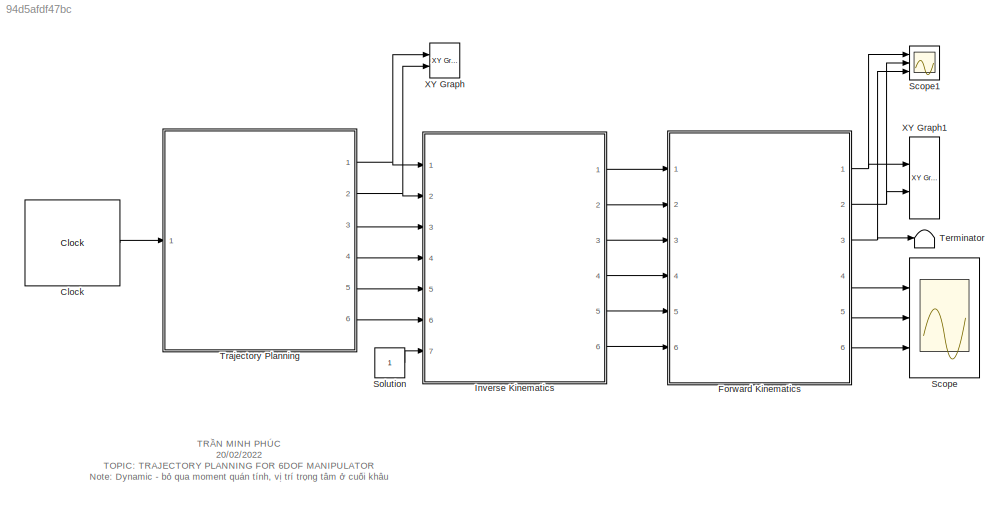
MODEL slx_94d5afdf47bc
KIND model
CONFIG AbsTol = auto
CONFIG EnableMultiTasking = off
CONFIG FixedStep = 0.01
CONFIG MaxStep = auto
CONFIG MinStep = auto
CONFIG RelTol = 1e-3
CONFIG SampleTimeConstraint = Unconstrained
CONFIG SolverName = FixedStepAuto
CONFIG StartTime = 0.0
CONFIG StopTime = 100
BLOCK [Clock] Clock
  DisplayTime = on
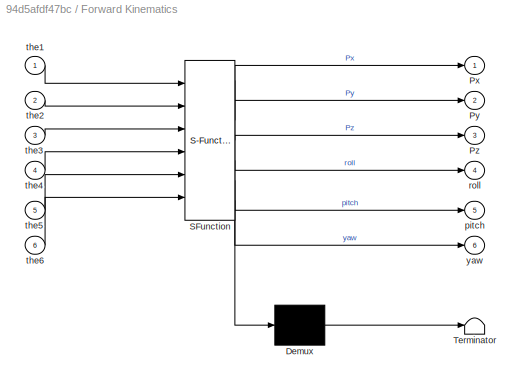
BLOCK [SubSystem] Forward Kinematics
  ErrorFcn = Stateflow.Translate.translate
  PermitHierarchicalResolution = ExplicitOnly
  Ports = [6, 6]
  RequestExecContextInheritance = off
  SFBlockType = MATLAB Function
  TreatAsAtomicUnit = on
BLOCK [Demux] Forward Kinematics/ Demux 
  Outputs = 1
  Ports = [1, 1]
BLOCK [S-Function] Forward Kinematics/ SFunction 
  EnableBusSupport = on
  FunctionName = sf_sfun
  PortCounts = [6 7]
  Ports = [6, 7]
  SFcnIsStateOwnerBlock = off
  SFunctionDeploymentMode = off
  Tag = Stateflow S-Function 3
BLOCK [Terminator] Forward Kinematics/ Terminator 
BLOCK [Outport] Forward Kinematics/Px
BLOCK [Outport] Forward Kinematics/Py
  Port = 2
BLOCK [Outport] Forward Kinematics/Pz
  Port = 3
BLOCK [Outport] Forward Kinematics/pitch
  Port = 5
BLOCK [Outport] Forward Kinematics/roll
  Port = 4
BLOCK [Inport] Forward Kinematics/the1
BLOCK [Inport] Forward Kinematics/the2
  Port = 2
BLOCK [Inport] Forward Kinematics/the3
  Port = 3
BLOCK [Inport] Forward Kinematics/the4
  Port = 4
BLOCK [Inport] Forward Kinematics/the5
  Port = 5
BLOCK [Inport] Forward Kinematics/the6
  Port = 6
BLOCK [Outport] Forward Kinematics/yaw
  Port = 6
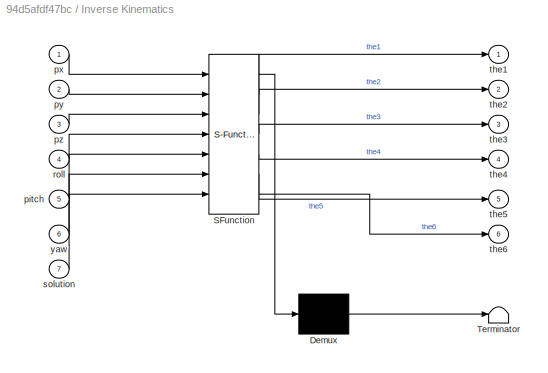
BLOCK [SubSystem] Inverse Kinematics
  ErrorFcn = Stateflow.Translate.translate
  PermitHierarchicalResolution = ExplicitOnly
  Ports = [7, 6]
  RequestExecContextInheritance = off
  SFBlockType = MATLAB Function
  TreatAsAtomicUnit = on
BLOCK [Demux] Inverse Kinematics/ Demux 
  Outputs = 1
  Ports = [1, 1]
BLOCK [S-Function] Inverse Kinematics/ SFunction 
  EnableBusSupport = on
  FunctionName = sf_sfun
  PortCounts = [7 7]
  Ports = [7, 7]
  SFcnIsStateOwnerBlock = off
  SFunctionDeploymentMode = off
  Tag = Stateflow S-Function 1
BLOCK [Terminator] Inverse Kinematics/ Terminator 
BLOCK [Inport] Inverse Kinematics/pitch
  Port = 5
BLOCK [Inport] Inverse Kinematics/px
BLOCK [Inport] Inverse Kinematics/py
  Port = 2
BLOCK [Inport] Inverse Kinematics/pz
  Port = 3
BLOCK [Inport] Inverse Kinematics/roll
  Port = 4
BLOCK [Inport] Inverse Kinematics/solution
  Port = 7
BLOCK [Outport] Inverse Kinematics/the1
BLOCK [Outport] Inverse Kinematics/the2
  Port = 2
BLOCK [Outport] Inverse Kinematics/the3
  Port = 3
BLOCK [Outport] Inverse Kinematics/the4
  Port = 4
BLOCK [Outport] Inverse Kinematics/the5
  Port = 5
BLOCK [Outport] Inverse Kinematics/the6
  Port = 6
BLOCK [Inport] Inverse Kinematics/yaw
  Port = 6
BLOCK [Scope] Scope
  Floating = off
  NumInputPorts = 3
  Ports = [3]
  ScopeSpecificationString = Simulink.scopes.TimeScopeBlockCfg('CurrentConfiguration', extmgr.ConfigurationSet(extmgr.Configuration('Core','General UI',true),extmgr.Configuration('Core','Source UI',true),extmgr.Configuration('Sources','WiredSimulink',true),extmgr.Configuration('Visuals','Time Domain',true,'SerializedDisplays',{struct('MinYLimReal','0.4999999999999991','MaxYLimReal','0.5000000000000009','YLabelReal','','MinYLi...<+2812ch>
BLOCK [Scope] Scope1
  Floating = off
  NumInputPorts = 3
  Ports = [3]
  ScopeSpecificationString = Simulink.scopes.TimeScopeBlockCfg('CurrentConfiguration', extmgr.ConfigurationSet(extmgr.Configuration('Core','General UI',true,'FigureColor',[1 1 1]),extmgr.Configuration('Core','Source UI',true),extmgr.Configuration('Sources','WiredSimulink',true,'DataLoggingVariableName','TP','DataLogging',true,'DataLoggingSaveFormat','Structure'),extmgr.Configuration('Visuals','Time Domain',true,'SerializedDis...<+3206ch>
BLOCK [Constant] Solution
BLOCK [Terminator] Terminator
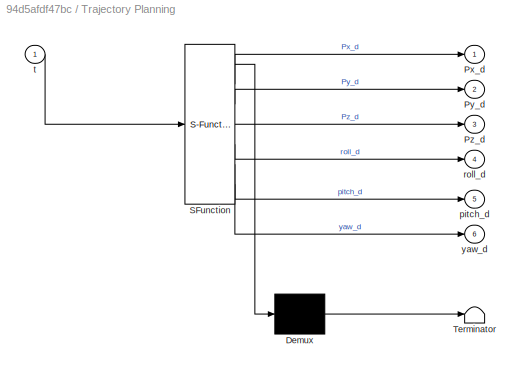
BLOCK [SubSystem] Trajectory Planning
  ErrorFcn = Stateflow.Translate.translate
  PermitHierarchicalResolution = ExplicitOnly
  Ports = [1, 6]
  RequestExecContextInheritance = off
  SFBlockType = MATLAB Function
  TreatAsAtomicUnit = on
BLOCK [Demux] Trajectory Planning/ Demux 
  Outputs = 1
  Ports = [1, 1]
BLOCK [S-Function] Trajectory Planning/ SFunction 
  EnableBusSupport = on
  FunctionName = sf_sfun
  PortCounts = [1 7]
  Ports = [1, 7]
  SFcnIsStateOwnerBlock = off
  SFunctionDeploymentMode = off
  Tag = Stateflow S-Function 2
BLOCK [Terminator] Trajectory Planning/ Terminator 
BLOCK [Outport] Trajectory Planning/Px_d
BLOCK [Outport] Trajectory Planning/Py_d
  Port = 2
BLOCK [Outport] Trajectory Planning/Pz_d
  Port = 3
BLOCK [Outport] Trajectory Planning/pitch_d
  Port = 5
BLOCK [Outport] Trajectory Planning/roll_d
  Port = 4
BLOCK [Inport] Trajectory Planning/t
BLOCK [Outport] Trajectory Planning/yaw_d
  Port = 6
BLOCK [Reference] XY Graph  REF=simulink/Sinks/XY Graph
  Commented = on
  Ports = [2]
  SourceBlock = simulink/Sinks/XY Graph
  SourceProductBaseCode = SL
  SourceType = XY scope.
BLOCK [Reference] XY Graph1  REF=simulink/Sinks/XY Graph
  Commented = on
  Ports = [2]
  SourceBlock = simulink/Sinks/XY Graph
  SourceProductBaseCode = SL
  SourceType = XY scope.
ANNOTATION (root): TRẦN MINH PHÚC 20/02/2022 TOPIC: TRAJECTORY PLANNING FOR 6DOF MANIPULATOR Note: Dynamic - bỏ qua moment quán tính, vị trí trọng tâm ở cuối khâu
LINE Clock:1 -> Trajectory Planning:1
NET Forward Kinematics:1 -> Scope1:1, XY Graph1:1
NET Forward Kinematics:2 -> Scope1:2, XY Graph1:2
NET Forward Kinematics:3 -> Scope1:3, Terminator:1
LINE Forward Kinematics:4 -> Scope:1
LINE Forward Kinematics:5 -> Scope:2
LINE Forward Kinematics:6 -> Scope:3
LINE Inverse Kinematics:1 -> Forward Kinematics:1
LINE Inverse Kinematics:2 -> Forward Kinematics:2
LINE Inverse Kinematics:3 -> Forward Kinematics:3
LINE Inverse Kinematics:4 -> Forward Kinematics:4
LINE Inverse Kinematics:5 -> Forward Kinematics:5
LINE Inverse Kinematics:6 -> Forward Kinematics:6
LINE Solution:1 -> Inverse Kinematics:7
NET Trajectory Planning:1 -> Inverse Kinematics:1, XY Graph:1
NET Trajectory Planning:2 -> Inverse Kinematics:2, XY Graph:2
LINE Trajectory Planning:3 -> Inverse Kinematics:3
LINE Trajectory Planning:4 -> Inverse Kinematics:4
LINE Trajectory Planning:5 -> Inverse Kinematics:5
LINE Trajectory Planning:6 -> Inverse Kinematics:6
note: NET lines group one-source signal fan-out (src -> all destinations, sorted); 1:1 wires keep LINE
CHART Inverse Kinematics states=1 transitions=1
  STATE_LABEL 'eML_blk_kernel()'
  STATE_LABEL 'SCRIPT:\nfunction [the1,the2,the3,the4,the5,the6] = fcn(px,py,pz,roll,pitch,yaw,solution)\na1=75; a2=270; a3=90; d1=335; d4=295; d7=80;\nemt = zeros(8,6);\nm = 0;\nr11 = cos(yaw)*cos(pitch);\nr21 = sin(yaw)*cos(pitch);\nr31 = -sin(pitch);\nr12 = cos(yaw)*sin(pitch)*sin(roll) - sin(yaw)*cos(roll);\nr22 = sin(yaw)*sin(pitch)*sin(roll) + cos(yaw)*cos(roll);\nr32 = cos(pitch)*sin(roll);\nr13 = cos(yaw)*sin(pitch...<+1849ch>'
CHART Trajectory Planning states=1 transitions=1
  STATE_LABEL 'eML_blk_kernel()'
  STATE_LABEL 'SCRIPT:\nfunction [Px_d,Py_d,Pz_d,roll_d,pitch_d,yaw_d] = TrajectoryPlanning(t)\nf=0.01; %hz\nPx_d = 400;\nPy_d = 0+50*cos(2*pi*f*t);\nPz_d = 650+50*sin(2*pi*f*t);\nroll_d=0.5;\npitch_d=0.5;\nyaw_d=0.5;'
CHART Forward Kinematics states=1 transitions=1
  STATE_LABEL 'eML_blk_kernel()'
  STATE_LABEL 'SCRIPT:\nfunction [Px,Py,Pz,roll,pitch,yaw] = FK_6DOF(the1,the2,the3,the4,the5,the6)\na1=75; a2=270; a3=90; d1=335; d4=295; d7=80;\n\nT_0_EE = ...\n[ cos(the6)*(cos(the5)*sin(the1)*sin(the4) + cos(the2 + the3)*cos(the1)*sin(the5) + cos(the1)*cos(the2)*cos(the4)*cos(the5)*sin(the3) + cos(the1)*cos(the3)*cos(the4)*cos(the5)*sin(the2)) - sin(the6)*(cos(the1)*cos(the2)*sin(the3)*sin(the4) - cos(the4)*sin(t...<+3608ch>'
CHART  states=0 transitions=0
CHART  states=0 transitions=0
CHART  states=0 transitions=0
